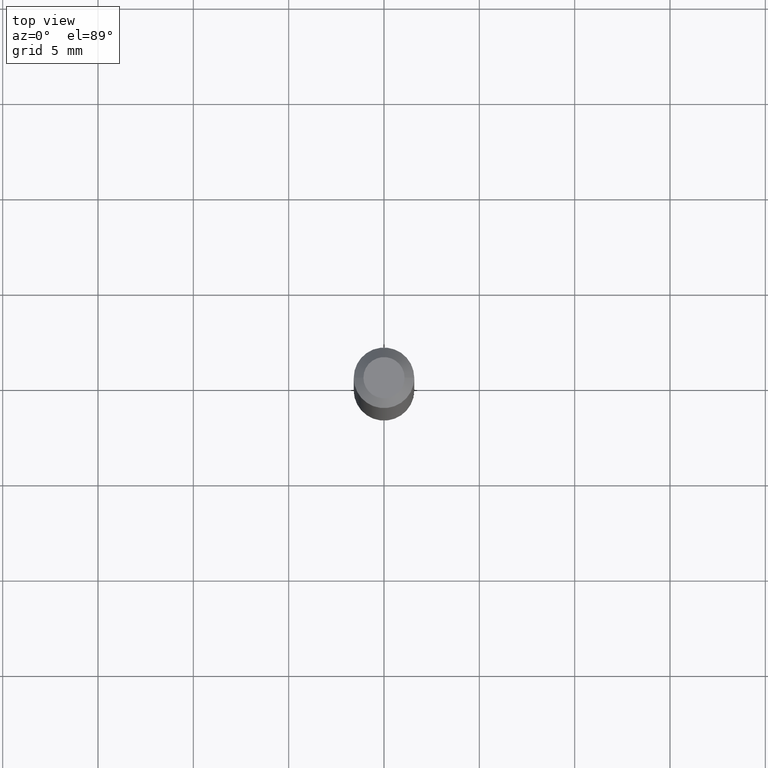
[diagram: clean part render]
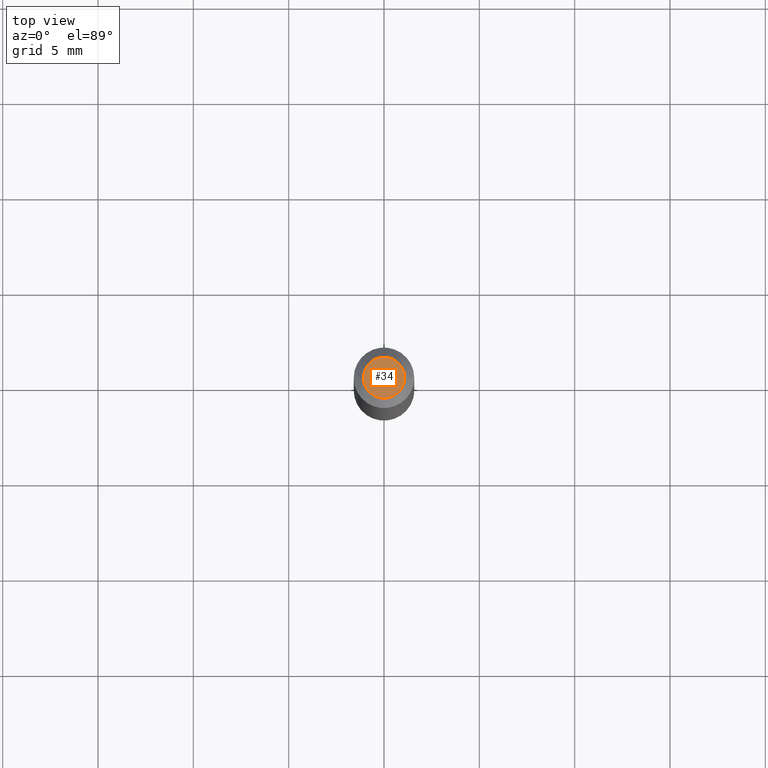
[diagram: same view with one face highlighted and labeled with its STEP entity id]
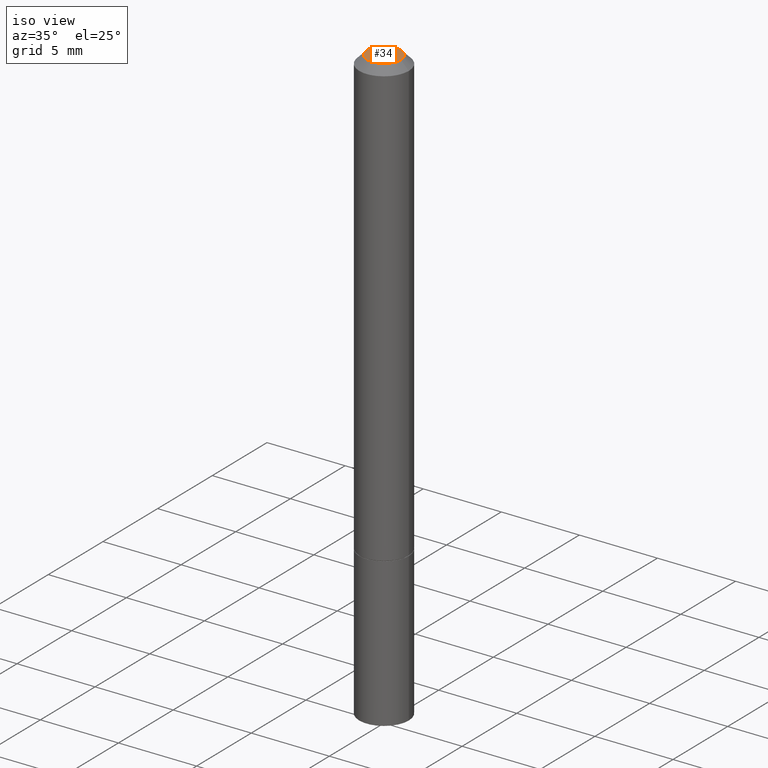
[diagram: same view with one face highlighted and labeled with its STEP entity id]
A machine part, top view. The second image highlights one B-rep face of the part: STEP entity #34.
A second angle (iso view) of the same face is appended — the face is thin or edge-on in the first view.
In plain terms, the highlighted planar face has unit normal (0, -0, -1).
Its self-contained STEP definition (entity closure, byte-faithful):
#22 = VERTEX_POINT ( 'NONE', #246 ) ;
#34 = ADVANCED_FACE ( 'NONE', ( #256 ), #197, .F. ) ;
#60 = DIRECTION ( 'NONE',  ( -2.445468806185136597E-29, 3.491481338843145583E-15, 1.000000000000000000 ) ) ;
#66 = CIRCLE ( 'NONE', #194, 0.04249999999999988509 ) ;
#84 = DIRECTION ( 'NONE',  ( -2.445468806185136597E-29, 3.491481338843145583E-15, 1.000000000000000000 ) ) ;
#93 = CARTESIAN_POINT ( 'NONE',  ( 0.04249999999999988509, -3.950909582714363501E-16, -5.549066237130292766E-17 ) ) ;
#119 = EDGE_CURVE ( 'NONE', #22, #191, #66, .T. ) ;
#145 = DIRECTION ( 'NONE',  ( 1.000000000000000000, -6.982962677686267499E-15, 4.870577812114097619E-29 ) ) ;
#150 = CARTESIAN_POINT ( 'NONE',  ( 1.357006838635785746E-45, -1.937446121494581442E-31, -5.549066237130534971E-17 ) ) ;
#152 = AXIS2_PLACEMENT_3D ( 'NONE', #150, #60, #264 ) ;
#173 = CARTESIAN_POINT ( 'NONE',  ( 1.357006838635785746E-45, -1.937446121494581442E-31, -5.549066237130534971E-17 ) ) ;
#190 = ORIENTED_EDGE ( 'NONE', *, *, #119, .T. ) ;
#191 = VERTEX_POINT ( 'NONE', #93 ) ;
#194 = AXIS2_PLACEMENT_3D ( 'NONE', #173, #84, #145 ) ;
#197 = PLANE ( 'NONE',  #284 ) ;
#231 = EDGE_CURVE ( 'NONE', #191, #22, #313, .T. ) ;
#246 = CARTESIAN_POINT ( 'NONE',  ( -0.04249999999999988509, 3.316907271900965249E-16, -5.549066237130754373E-17 ) ) ;
#248 = ORIENTED_EDGE ( 'NONE', *, *, #231, .T. ) ;
#256 = FACE_OUTER_BOUND ( 'NONE', #279, .T. ) ;
#264 = DIRECTION ( 'NONE',  ( 1.000000000000000000, -6.982962677686267499E-15, 4.870577812114097619E-29 ) ) ;
#279 = EDGE_LOOP ( 'NONE', ( #190, #248 ) ) ;
#284 = AXIS2_PLACEMENT_3D ( 'NONE', #358, #338, #311 ) ;
#311 = DIRECTION ( 'NONE',  ( -1.000000000000000000, 6.982962677686265922E-15, -4.876176775795935793E-29 ) ) ;
#313 = CIRCLE ( 'NONE', #152, 0.04249999999999988509 ) ;
#338 = DIRECTION ( 'NONE',  ( 2.438088387897960049E-29, -3.491481338843145188E-15, -1.000000000000000000 ) ) ;
#358 = CARTESIAN_POINT ( 'NONE',  ( 2.967759138016655168E-16, 0.04249999999999988509, -1.761332880864859756E-16 ) ) ;